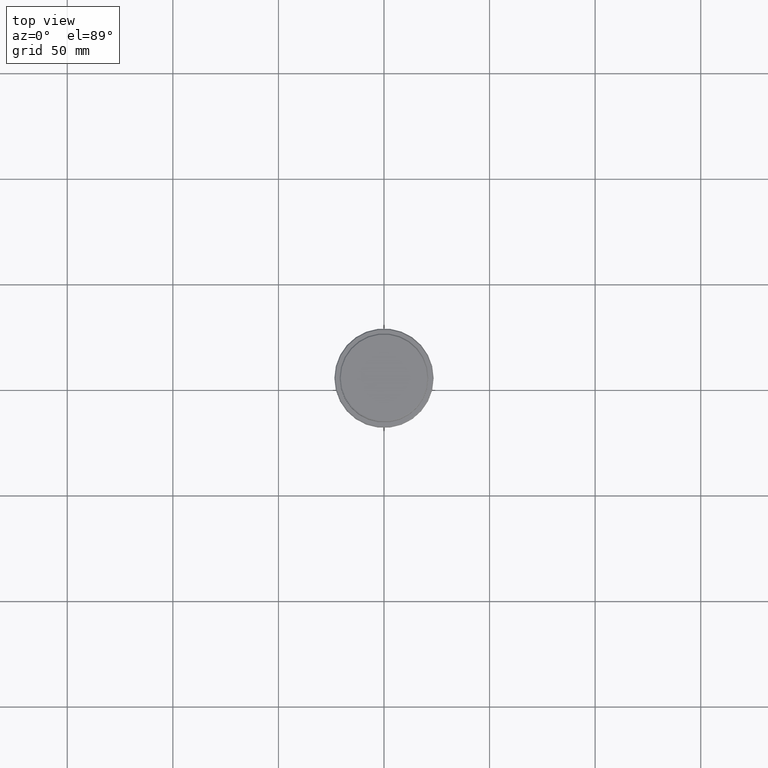
[diagram: clean part render]
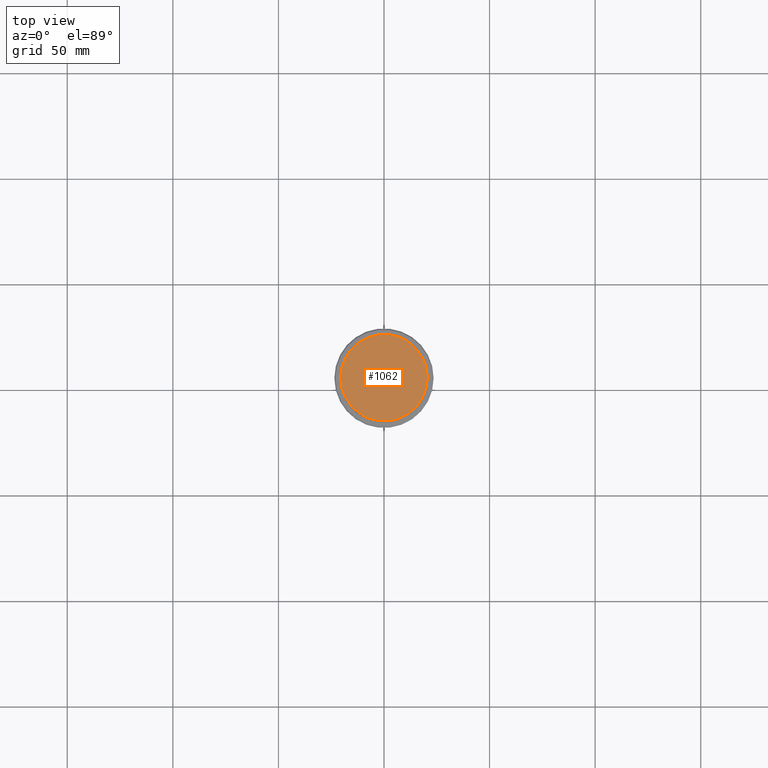
[diagram: same view with one face highlighted and labeled with its STEP entity id]
A machine part, top view. The second image highlights one B-rep face of the part: STEP entity #1062.
In plain terms, the highlighted planar face has unit normal (0, -0, 1).
Its self-contained STEP definition (entity closure, byte-faithful):
#11 = DIRECTION ( 'NONE',  ( 0.000000000000000000, -0.000000000000000000, 1.000000000000000000 ) ) ;
#106 = CIRCLE ( 'NONE', #777, 20.49999999999996447 ) ;
#118 = DIRECTION ( 'NONE',  ( 1.000000000000000000, 0.000000000000000000, 0.000000000000000000 ) ) ;
#159 = ORIENTED_EDGE ( 'NONE', *, *, #931, .T. ) ;
#162 = VERTEX_POINT ( 'NONE', #1077 ) ;
#333 = CARTESIAN_POINT ( 'NONE',  ( 0.000000000000000000, 0.000000000000000000, 0.000000000000000000 ) ) ;
#347 = CARTESIAN_POINT ( 'NONE',  ( 0.000000000000000000, 0.000000000000000000, 0.000000000000000000 ) ) ;
#385 = EDGE_LOOP ( 'NONE', ( #446, #159 ) ) ;
#390 = CIRCLE ( 'NONE', #1336, 20.49999999999996447 ) ;
#442 = FACE_OUTER_BOUND ( 'NONE', #385, .T. ) ;
#446 = ORIENTED_EDGE ( 'NONE', *, *, #611, .T. ) ;
#611 = EDGE_CURVE ( 'NONE', #748, #162, #106, .T. ) ;
#742 = CARTESIAN_POINT ( 'NONE',  ( 0.000000000000000000, 0.000000000000000000, 0.000000000000000000 ) ) ;
#748 = VERTEX_POINT ( 'NONE', #1214 ) ;
#777 = AXIS2_PLACEMENT_3D ( 'NONE', #333, #1300, #118 ) ;
#784 = DIRECTION ( 'NONE',  ( 1.000000000000000000, 0.000000000000000000, 0.000000000000000000 ) ) ;
#931 = EDGE_CURVE ( 'NONE', #162, #748, #390, .T. ) ;
#964 = DIRECTION ( 'NONE',  ( 1.000000000000000000, 0.000000000000000000, 0.000000000000000000 ) ) ;
#1047 = DIRECTION ( 'NONE',  ( -0.000000000000000000, -0.000000000000000000, 1.000000000000000000 ) ) ;
#1062 = ADVANCED_FACE ( 'NONE', ( #442 ), #1189, .T. ) ;
#1077 = CARTESIAN_POINT ( 'NONE',  ( 20.49999999999996447, 2.541142108230755507E-15, 0.000000000000000000 ) ) ;
#1189 = PLANE ( 'NONE',  #1310 ) ;
#1214 = CARTESIAN_POINT ( 'NONE',  ( -20.49999999999996447, 0.000000000000000000, 0.000000000000000000 ) ) ;
#1300 = DIRECTION ( 'NONE',  ( -0.000000000000000000, -0.000000000000000000, 1.000000000000000000 ) ) ;
#1310 = AXIS2_PLACEMENT_3D ( 'NONE', #347, #11, #784 ) ;
#1336 = AXIS2_PLACEMENT_3D ( 'NONE', #742, #1047, #964 ) ;